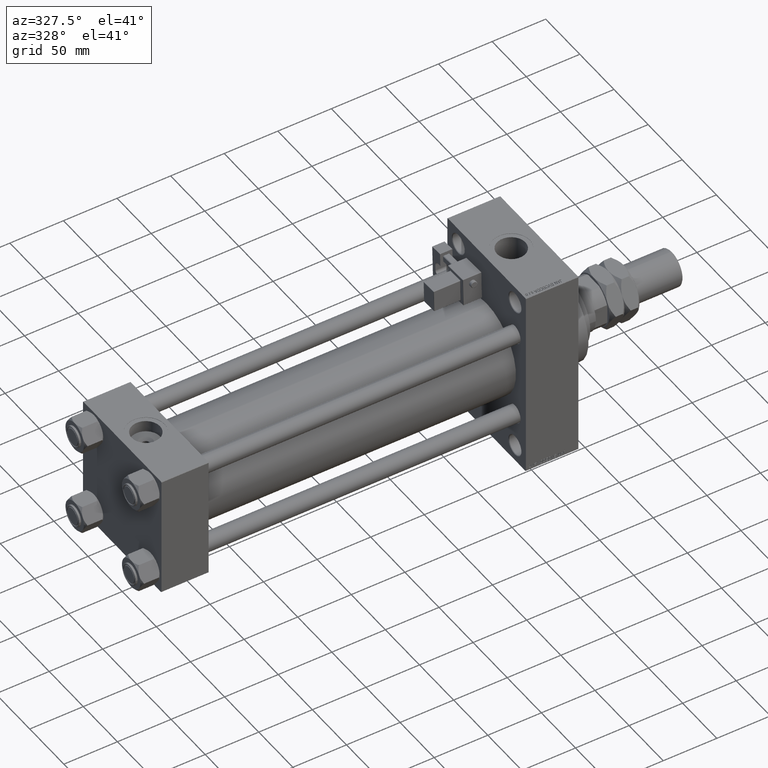
[diagram: clean part render]
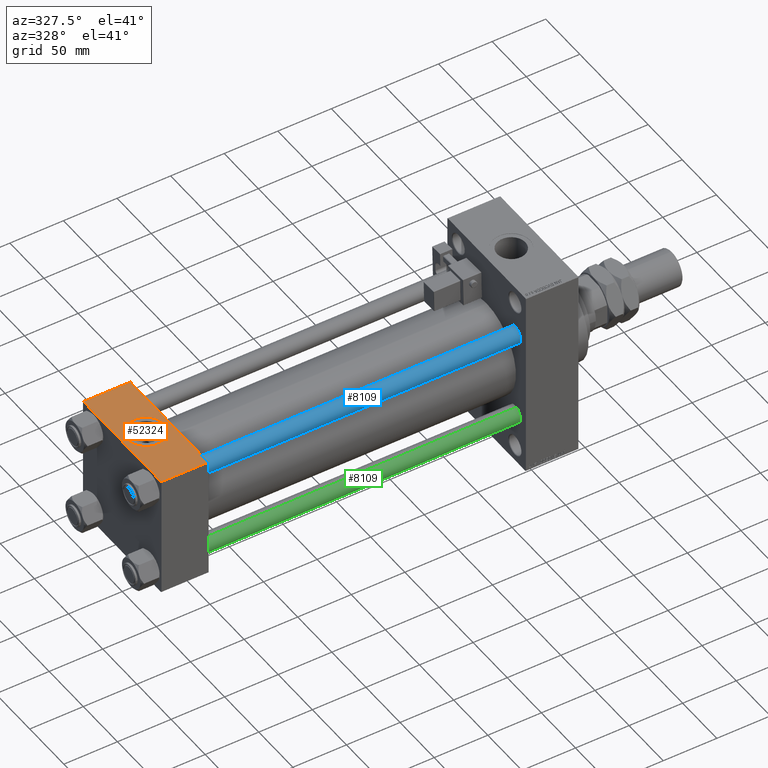
[diagram: same view with three faces highlighted in distinct colors, each labeled with its STEP entity id]
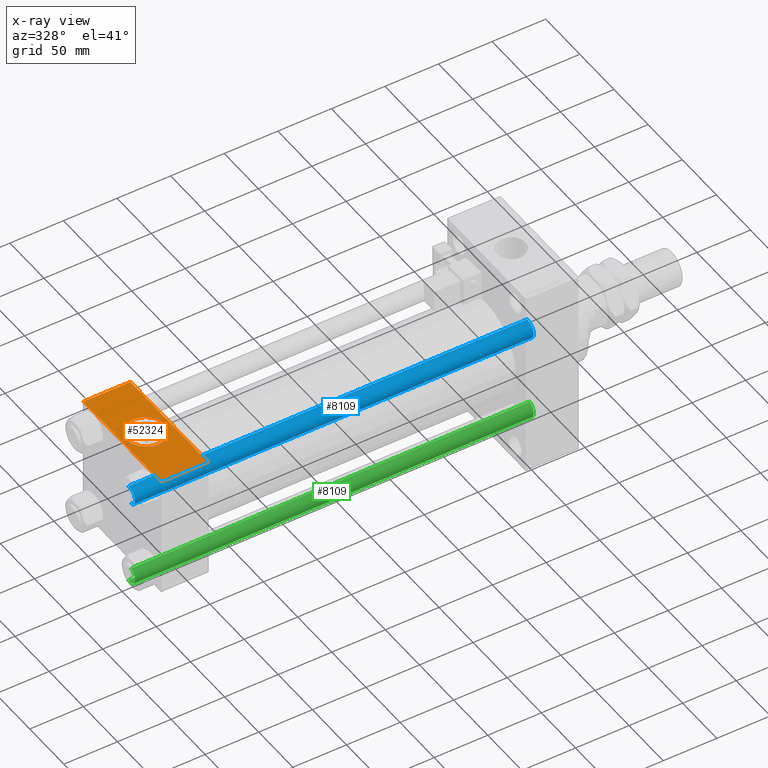
[diagram: x-ray of the same camera — body ghosted, the three highlighted faces saturated]
A machine part, auxiliary view with three faces highlighted in distinct colors.
The next image is the same camera in x-ray (body ghosted, the three faces saturated) — at least one of them is partly hidden behind the body in this view.
Their STEP definitions:

[orange] entity #52324 — the highlighted planar face has unit normal (0, 0, -1).
#1149 = CARTESIAN_POINT ( 'NONE',  ( 44.00000000000000000, -57.00000000000003553, 57.49999999999999289 ) ) ;
#2523 = VERTEX_POINT ( 'NONE', #38135 ) ;
#3341 = FACE_OUTER_BOUND ( 'NONE', #35238, .T. ) ;
#3726 = CARTESIAN_POINT ( 'NONE',  ( 44.00000000000000000, -57.00000000000003553, 57.49999999999999289 ) ) ;
#3999 = LINE ( 'NONE', #3726, #25338 ) ;
#4421 = VECTOR ( 'NONE', #33607, 1000.000000000000000 ) ;
#4810 = DIRECTION ( 'NONE',  ( 1.000000000000000000, 0.000000000000000000, 0.000000000000000000 ) ) ;
#4822 = LINE ( 'NONE', #42405, #10208 ) ;
#8890 = VERTEX_POINT ( 'NONE', #45347 ) ;
#9436 = EDGE_CURVE ( 'NONE', #23444, #29798, #17829, .T. ) ;
#10208 = VECTOR ( 'NONE', #17380, 1000.000000000000000 ) ;
#10577 = CARTESIAN_POINT ( 'NONE',  ( 22.00000000000000000, -8.673617379884035472E-15, 57.50000000000000000 ) ) ;
#10935 = CARTESIAN_POINT ( 'NONE',  ( 0.000000000000000000, 57.00000000000000711, 57.50000000000000711 ) ) ;
#13542 = CIRCLE ( 'NONE', #19606, 17.50000000000000000 ) ;
#14142 = ORIENTED_EDGE ( 'NONE', *, *, #9436, .T. ) ;
#16159 = VERTEX_POINT ( 'NONE', #1149 ) ;
#16599 = ORIENTED_EDGE ( 'NONE', *, *, #30260, .F. ) ;
#17380 = DIRECTION ( 'NONE',  ( 0.000000000000000000, -1.000000000000000000, -1.206764157201257045E-16 ) ) ;
#17829 = LINE ( 'NONE', #25451, #4421 ) ;
#19606 = AXIS2_PLACEMENT_3D ( 'NONE', #10577, #43789, #23137 ) ;
#20982 = EDGE_CURVE ( 'NONE', #2523, #8890, #13542, .T. ) ;
#21313 = ORIENTED_EDGE ( 'NONE', *, *, #24668, .T. ) ;
#21713 = CARTESIAN_POINT ( 'NONE',  ( 0.000000000000000000, -57.00000000000003553, 57.49999999999999289 ) ) ;
#23137 = DIRECTION ( 'NONE',  ( 1.000000000000000000, 0.000000000000000000, 0.000000000000000000 ) ) ;
#23444 = VERTEX_POINT ( 'NONE', #35438 ) ;
#24668 = EDGE_CURVE ( 'NONE', #29798, #38713, #4822, .T. ) ;
#24854 = CIRCLE ( 'NONE', #50072, 17.50000000000000000 ) ;
#25338 = VECTOR ( 'NONE', #4810, 1000.000000000000000 ) ;
#25451 = CARTESIAN_POINT ( 'NONE',  ( 0.000000000000000000, 57.00000000000000711, 57.50000000000000711 ) ) ;
#25984 = CARTESIAN_POINT ( 'NONE',  ( 22.00000000000000000, -8.673617379884035472E-15, 57.50000000000000000 ) ) ;
#26774 = DIRECTION ( 'NONE',  ( 0.000000000000000000, 0.000000000000000000, 1.000000000000000000 ) ) ;
#28302 = DIRECTION ( 'NONE',  ( 0.000000000000000000, -1.000000000000000000, -1.206764157201257045E-16 ) ) ;
#29401 = ORIENTED_EDGE ( 'NONE', *, *, #29569, .T. ) ;
#29569 = EDGE_CURVE ( 'NONE', #38713, #16159, #3999, .T. ) ;
#29798 = VERTEX_POINT ( 'NONE', #10935 ) ;
#30260 = EDGE_CURVE ( 'NONE', #23444, #16159, #53073, .T. ) ;
#30451 = AXIS2_PLACEMENT_3D ( 'NONE', #36556, #37830, #34029 ) ;
#31943 = FACE_BOUND ( 'NONE', #39837, .T. ) ;
#32783 = ORIENTED_EDGE ( 'NONE', *, *, #20982, .F. ) ;
#33607 = DIRECTION ( 'NONE',  ( -1.000000000000000000, 0.000000000000000000, 0.000000000000000000 ) ) ;
#34029 = DIRECTION ( 'NONE',  ( 0.000000000000000000, 1.000000000000000000, 1.206764157201257045E-16 ) ) ;
#35238 = EDGE_LOOP ( 'NONE', ( #21313, #29401, #16599, #14142 ) ) ;
#35438 = CARTESIAN_POINT ( 'NONE',  ( 44.00000000000000000, 57.00000000000000711, 57.50000000000000711 ) ) ;
#36556 = CARTESIAN_POINT ( 'NONE',  ( 44.00000000000000000, 57.49999999999999289, 57.50000000000000711 ) ) ;
#37830 = DIRECTION ( 'NONE',  ( 0.000000000000000000, 1.206764157201257045E-16, -1.000000000000000000 ) ) ;
#38135 = CARTESIAN_POINT ( 'NONE',  ( 4.499999999999997335, -6.530485481376167224E-15, 57.50000000000000000 ) ) ;
#38713 = VERTEX_POINT ( 'NONE', #21713 ) ;
#39001 = DIRECTION ( 'NONE',  ( 1.000000000000000000, 0.000000000000000000, 0.000000000000000000 ) ) ;
#39837 = EDGE_LOOP ( 'NONE', ( #44653, #32783 ) ) ;
#42405 = CARTESIAN_POINT ( 'NONE',  ( 0.000000000000000000, 57.49999999999999289, 57.50000000000000711 ) ) ;
#43619 = VECTOR ( 'NONE', #28302, 1000.000000000000000 ) ;
#43789 = DIRECTION ( 'NONE',  ( 0.000000000000000000, 0.000000000000000000, 1.000000000000000000 ) ) ;
#44448 = PLANE ( 'NONE',  #30451 ) ;
#44653 = ORIENTED_EDGE ( 'NONE', *, *, #45253, .F. ) ;
#45253 = EDGE_CURVE ( 'NONE', #8890, #2523, #24854, .T. ) ;
#45347 = CARTESIAN_POINT ( 'NONE',  ( 39.50000000000000000, -8.673617379884035472E-15, 57.50000000000000000 ) ) ;
#49256 = CARTESIAN_POINT ( 'NONE',  ( 44.00000000000000000, 57.49999999999999289, 57.50000000000000711 ) ) ;
#50072 = AXIS2_PLACEMENT_3D ( 'NONE', #25984, #26774, #39001 ) ;
#52324 = ADVANCED_FACE ( 'NONE', ( #31943, #3341 ), #44448, .F. ) ;
#53073 = LINE ( 'NONE', #49256, #43619 ) ;

[blue] entity #8109 — the highlighted cylindrical surface (edge-blend (fillet) strip) has radius 8 mm, axis along (1, 0, 0).
#395 = VERTEX_POINT ( 'NONE', #17384 ) ;
#1493 = CARTESIAN_POINT ( 'NONE',  ( -8.000000000000000000, 0.000000000000000000, 373.0000000000000000 ) ) ;
#2629 = AXIS2_PLACEMENT_3D ( 'NONE', #31427, #23541, #48035 ) ;
#3823 = DIRECTION ( 'NONE',  ( 1.000000000000000000, 0.000000000000000000, 0.000000000000000000 ) ) ;
#7009 = CARTESIAN_POINT ( 'NONE',  ( 8.000000000000000000, 9.797174393178825657E-16, 373.0000000000000000 ) ) ;
#8109 = ADVANCED_FACE ( 'NONE', ( #39316 ), #51879, .T. ) ;
#8856 = CARTESIAN_POINT ( 'NONE',  ( 8.000000000000000000, 9.797174393178825657E-16, 0.5000000000000559552 ) ) ;
#11355 = VECTOR ( 'NONE', #23380, 1000.000000000000000 ) ;
#16463 = VERTEX_POINT ( 'NONE', #18793 ) ;
#17180 = CARTESIAN_POINT ( 'NONE',  ( -8.000000000000000000, 0.000000000000000000, 0.5000000000000559552 ) ) ;
#17290 = ORIENTED_EDGE ( 'NONE', *, *, #31664, .T. ) ;
#17384 = CARTESIAN_POINT ( 'NONE',  ( 8.000000000000000000, 9.797174393178825657E-16, 372.5000000000000000 ) ) ;
#17951 = ORIENTED_EDGE ( 'NONE', *, *, #22427, .F. ) ;
#18793 = CARTESIAN_POINT ( 'NONE',  ( -8.000000000000000000, 0.000000000000000000, 372.5000000000000000 ) ) ;
#21012 = DIRECTION ( 'NONE',  ( -0.000000000000000000, -0.000000000000000000, 1.000000000000000000 ) ) ;
#21942 = CIRCLE ( 'NONE', #28842, 8.000000000000000000 ) ;
#22427 = EDGE_CURVE ( 'NONE', #16463, #53666, #42882, .T. ) ;
#23380 = DIRECTION ( 'NONE',  ( -0.000000000000000000, -0.000000000000000000, -1.000000000000000000 ) ) ;
#23541 = DIRECTION ( 'NONE',  ( -0.000000000000000000, -0.000000000000000000, -1.000000000000000000 ) ) ;
#24511 = CIRCLE ( 'NONE', #52298, 8.000000000000000000 ) ;
#24921 = LINE ( 'NONE', #7009, #11355 ) ;
#28370 = CARTESIAN_POINT ( 'NONE',  ( 0.000000000000000000, 0.000000000000000000, 0.5000000000000559552 ) ) ;
#28532 = EDGE_CURVE ( 'NONE', #395, #48325, #24921, .T. ) ;
#28842 = AXIS2_PLACEMENT_3D ( 'NONE', #36872, #49399, #53229 ) ;
#29954 = EDGE_CURVE ( 'NONE', #48325, #53666, #24511, .T. ) ;
#31427 = CARTESIAN_POINT ( 'NONE',  ( 0.000000000000000000, 0.000000000000000000, 373.0000000000000000 ) ) ;
#31664 = EDGE_CURVE ( 'NONE', #16463, #395, #21942, .T. ) ;
#31683 = ORIENTED_EDGE ( 'NONE', *, *, #28532, .T. ) ;
#35259 = DIRECTION ( 'NONE',  ( -0.000000000000000000, -0.000000000000000000, -1.000000000000000000 ) ) ;
#36872 = CARTESIAN_POINT ( 'NONE',  ( 0.000000000000000000, 0.000000000000000000, 372.5000000000000000 ) ) ;
#39316 = FACE_OUTER_BOUND ( 'NONE', #46785, .T. ) ;
#42882 = LINE ( 'NONE', #1493, #51832 ) ;
#46785 = EDGE_LOOP ( 'NONE', ( #17290, #31683, #48835, #17951 ) ) ;
#48035 = DIRECTION ( 'NONE',  ( -1.000000000000000000, 0.000000000000000000, 0.000000000000000000 ) ) ;
#48325 = VERTEX_POINT ( 'NONE', #8856 ) ;
#48835 = ORIENTED_EDGE ( 'NONE', *, *, #29954, .T. ) ;
#49399 = DIRECTION ( 'NONE',  ( 0.000000000000000000, 0.000000000000000000, -1.000000000000000000 ) ) ;
#51832 = VECTOR ( 'NONE', #35259, 1000.000000000000000 ) ;
#51879 = CYLINDRICAL_SURFACE ( 'NONE', #2629, 8.000000000000000000 ) ;
#52298 = AXIS2_PLACEMENT_3D ( 'NONE', #28370, #21012, #3823 ) ;
#53229 = DIRECTION ( 'NONE',  ( 1.000000000000000000, 0.000000000000000000, 0.000000000000000000 ) ) ;
#53666 = VERTEX_POINT ( 'NONE', #17180 ) ;

[green] entity #8109 — the highlighted cylindrical surface (edge-blend (fillet) strip) has radius 8 mm, axis along (-1, 0, 0).
#395 = VERTEX_POINT ( 'NONE', #17384 ) ;
#1493 = CARTESIAN_POINT ( 'NONE',  ( -8.000000000000000000, 0.000000000000000000, 373.0000000000000000 ) ) ;
#2629 = AXIS2_PLACEMENT_3D ( 'NONE', #31427, #23541, #48035 ) ;
#3823 = DIRECTION ( 'NONE',  ( 1.000000000000000000, 0.000000000000000000, 0.000000000000000000 ) ) ;
#7009 = CARTESIAN_POINT ( 'NONE',  ( 8.000000000000000000, 9.797174393178825657E-16, 373.0000000000000000 ) ) ;
#8109 = ADVANCED_FACE ( 'NONE', ( #39316 ), #51879, .T. ) ;
#8856 = CARTESIAN_POINT ( 'NONE',  ( 8.000000000000000000, 9.797174393178825657E-16, 0.5000000000000559552 ) ) ;
#11355 = VECTOR ( 'NONE', #23380, 1000.000000000000000 ) ;
#16463 = VERTEX_POINT ( 'NONE', #18793 ) ;
#17180 = CARTESIAN_POINT ( 'NONE',  ( -8.000000000000000000, 0.000000000000000000, 0.5000000000000559552 ) ) ;
#17290 = ORIENTED_EDGE ( 'NONE', *, *, #31664, .T. ) ;
#17384 = CARTESIAN_POINT ( 'NONE',  ( 8.000000000000000000, 9.797174393178825657E-16, 372.5000000000000000 ) ) ;
#17951 = ORIENTED_EDGE ( 'NONE', *, *, #22427, .F. ) ;
#18793 = CARTESIAN_POINT ( 'NONE',  ( -8.000000000000000000, 0.000000000000000000, 372.5000000000000000 ) ) ;
#21012 = DIRECTION ( 'NONE',  ( -0.000000000000000000, -0.000000000000000000, 1.000000000000000000 ) ) ;
#21942 = CIRCLE ( 'NONE', #28842, 8.000000000000000000 ) ;
#22427 = EDGE_CURVE ( 'NONE', #16463, #53666, #42882, .T. ) ;
#23380 = DIRECTION ( 'NONE',  ( -0.000000000000000000, -0.000000000000000000, -1.000000000000000000 ) ) ;
#23541 = DIRECTION ( 'NONE',  ( -0.000000000000000000, -0.000000000000000000, -1.000000000000000000 ) ) ;
#24511 = CIRCLE ( 'NONE', #52298, 8.000000000000000000 ) ;
#24921 = LINE ( 'NONE', #7009, #11355 ) ;
#28370 = CARTESIAN_POINT ( 'NONE',  ( 0.000000000000000000, 0.000000000000000000, 0.5000000000000559552 ) ) ;
#28532 = EDGE_CURVE ( 'NONE', #395, #48325, #24921, .T. ) ;
#28842 = AXIS2_PLACEMENT_3D ( 'NONE', #36872, #49399, #53229 ) ;
#29954 = EDGE_CURVE ( 'NONE', #48325, #53666, #24511, .T. ) ;
#31427 = CARTESIAN_POINT ( 'NONE',  ( 0.000000000000000000, 0.000000000000000000, 373.0000000000000000 ) ) ;
#31664 = EDGE_CURVE ( 'NONE', #16463, #395, #21942, .T. ) ;
#31683 = ORIENTED_EDGE ( 'NONE', *, *, #28532, .T. ) ;
#35259 = DIRECTION ( 'NONE',  ( -0.000000000000000000, -0.000000000000000000, -1.000000000000000000 ) ) ;
#36872 = CARTESIAN_POINT ( 'NONE',  ( 0.000000000000000000, 0.000000000000000000, 372.5000000000000000 ) ) ;
#39316 = FACE_OUTER_BOUND ( 'NONE', #46785, .T. ) ;
#42882 = LINE ( 'NONE', #1493, #51832 ) ;
#46785 = EDGE_LOOP ( 'NONE', ( #17290, #31683, #48835, #17951 ) ) ;
#48035 = DIRECTION ( 'NONE',  ( -1.000000000000000000, 0.000000000000000000, 0.000000000000000000 ) ) ;
#48325 = VERTEX_POINT ( 'NONE', #8856 ) ;
#48835 = ORIENTED_EDGE ( 'NONE', *, *, #29954, .T. ) ;
#49399 = DIRECTION ( 'NONE',  ( 0.000000000000000000, 0.000000000000000000, -1.000000000000000000 ) ) ;
#51832 = VECTOR ( 'NONE', #35259, 1000.000000000000000 ) ;
#51879 = CYLINDRICAL_SURFACE ( 'NONE', #2629, 8.000000000000000000 ) ;
#52298 = AXIS2_PLACEMENT_3D ( 'NONE', #28370, #21012, #3823 ) ;
#53229 = DIRECTION ( 'NONE',  ( 1.000000000000000000, 0.000000000000000000, 0.000000000000000000 ) ) ;
#53666 = VERTEX_POINT ( 'NONE', #17180 ) ;